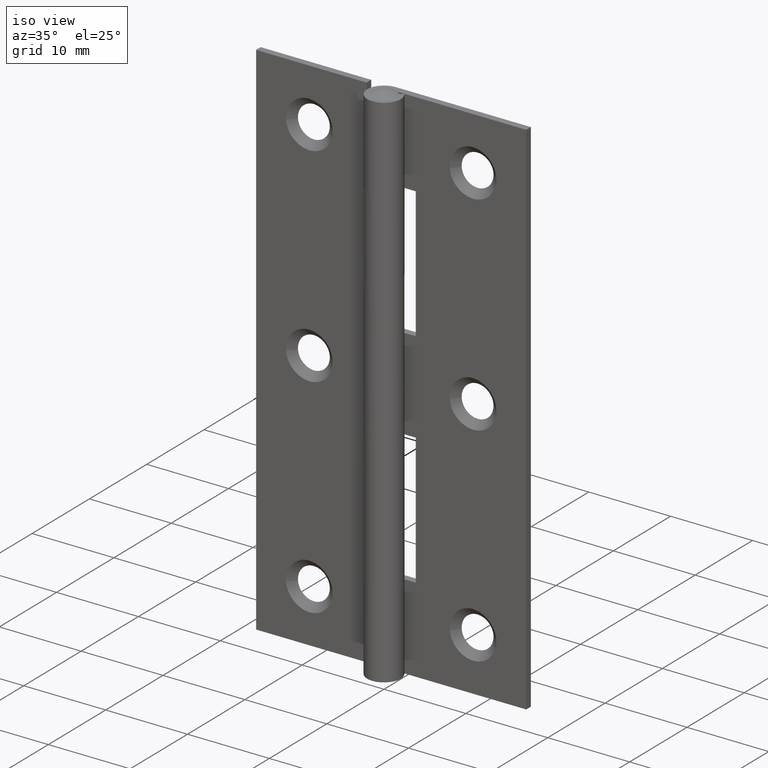
[diagram: clean part render]
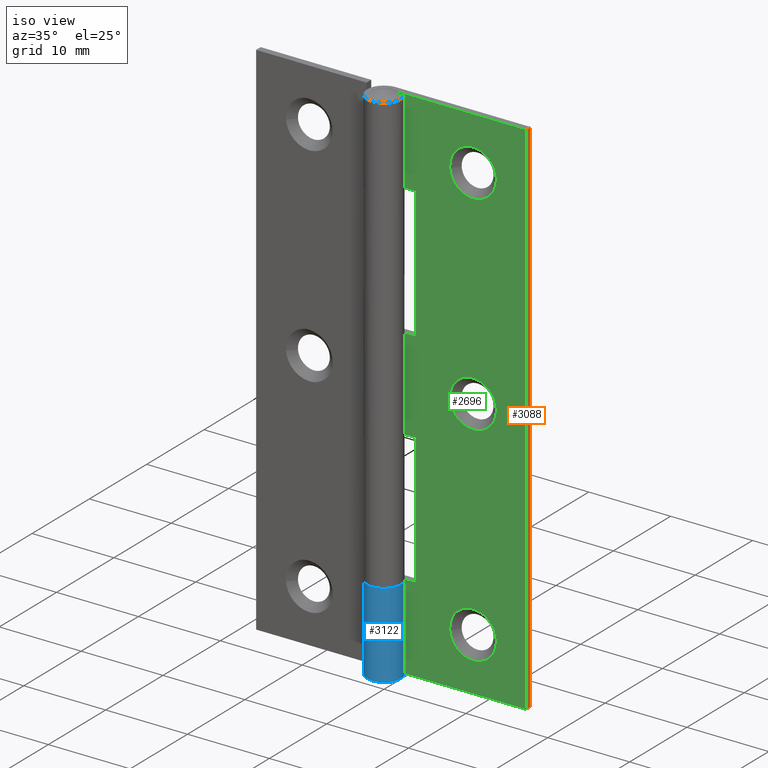
[diagram: same view with three faces highlighted in distinct colors, each labeled with its STEP entity id]
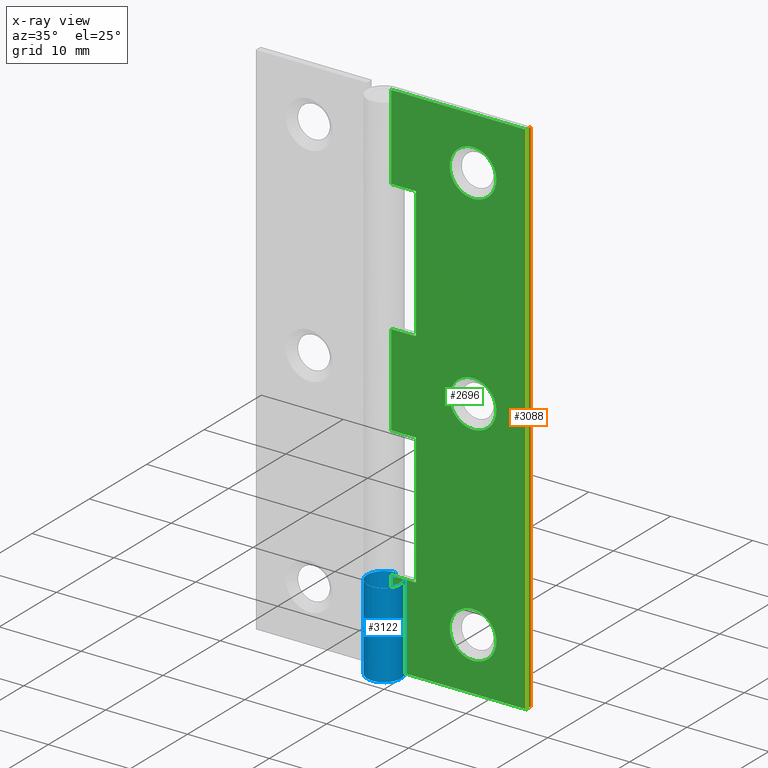
[diagram: x-ray of the same camera — body ghosted, the three highlighted faces saturated]
A machine part, iso view with three faces highlighted in distinct colors.
The next image is the same camera in x-ray (body ghosted, the three faces saturated) — at least one of them is partly hidden behind the body in this view.
Their STEP definitions:

[orange] entity #3088 — the highlighted face is a freeform B-spline surface patch.
#2657=CARTESIAN_POINT('',(16.500000000000000,1.250000000000000,0.0));
#2658=VERTEX_POINT('',#2657);
#2664=CARTESIAN_POINT('',(16.500000000000000,1.250000000000000,64.000007999999895));
#2665=VERTEX_POINT('',#2664);
#2666=CARTESIAN_POINT('',(16.500000000000000,1.250000000000000,64.000007999999895));
#2667=CARTESIAN_POINT('',(16.500000000000000,1.250000000000000,0.0));
#2668=QUASI_UNIFORM_CURVE('',1,(#2666,#2667),.UNSPECIFIED.,.F.,.U.);
#2669=EDGE_CURVE('',#2665,#2658,#2668,.T.);
#2969=CARTESIAN_POINT('',(16.500000000000000,2.049998000000000,0.0));
#2970=VERTEX_POINT('',#2969);
#2976=CARTESIAN_POINT('',(16.500000000000000,2.049998000000000,0.0));
#2977=CARTESIAN_POINT('',(16.500000000000000,1.250000000000000,0.0));
#2978=QUASI_UNIFORM_CURVE('',1,(#2976,#2977),.UNSPECIFIED.,.F.,.U.);
#2979=EDGE_CURVE('',#2970,#2658,#2978,.T.);
#3024=CARTESIAN_POINT('',(16.500000000000000,2.049998000000000,64.000007999999895));
#3025=VERTEX_POINT('',#3024);
#3065=CARTESIAN_POINT('',(16.500000000000000,2.049998000000000,64.000007999999895));
#3066=CARTESIAN_POINT('',(16.500000000000000,1.250000000000000,64.000007999999895));
#3067=QUASI_UNIFORM_CURVE('',1,(#3065,#3066),.UNSPECIFIED.,.F.,.U.);
#3068=EDGE_CURVE('',#3025,#2665,#3067,.T.);
#3073=CARTESIAN_POINT('',(16.500000000000000,1.210040101450551,67.196808275555455));
#3074=CARTESIAN_POINT('',(16.500000000000000,1.210040101450551,-3.196801992169542));
#3075=CARTESIAN_POINT('',(16.500000000000000,2.089957920007068,67.196808275555455));
#3076=CARTESIAN_POINT('',(16.500000000000000,2.089957920007068,-3.196801992169542));
#3077=B_SPLINE_SURFACE_WITH_KNOTS('',1,1,((#3073,#3075),(#3074,#3076)),.UNSPECIFIED.,.F.,.F.,.U.,(2,2),(2,2),(0.0,70.393610267724995),(0.041708334948495,0.958291687403247),.UNSPECIFIED.);
#3078=ORIENTED_EDGE('',*,*,#2979,.F.);
#3079=CARTESIAN_POINT('',(16.500000000000000,2.049998000000000,64.000007999999895));
#3080=CARTESIAN_POINT('',(16.500000000000000,2.049998000000000,0.0));
#3081=QUASI_UNIFORM_CURVE('',1,(#3079,#3080),.UNSPECIFIED.,.F.,.U.);
#3082=EDGE_CURVE('',#3025,#2970,#3081,.T.);
#3083=ORIENTED_EDGE('',*,*,#3082,.F.);
#3084=ORIENTED_EDGE('',*,*,#3068,.T.);
#3085=ORIENTED_EDGE('',*,*,#2669,.T.);
#3086=EDGE_LOOP('',(#3078,#3083,#3084,#3085));
#3087=FACE_OUTER_BOUND('',#3086,.T.);
#3088=ADVANCED_FACE('',(#3087),#3077,.T.);

[blue] entity #3122 — the highlighted face is a freeform B-spline surface patch.
#2255=CARTESIAN_POINT('',(1.662078457834050,1.199998000000014,10.399994000000021));
#2256=VERTEX_POINT('',#2255);
#2262=CARTESIAN_POINT('',(1.662078457834050,1.199998000000014,0.0));
#2263=VERTEX_POINT('',#2262);
#2264=CARTESIAN_POINT('',(1.662078457834050,1.199998000000014,10.399994000000021));
#2265=CARTESIAN_POINT('',(1.662078457834050,1.199998000000014,0.0));
#2266=QUASI_UNIFORM_CURVE('',1,(#2264,#2265),.UNSPECIFIED.,.F.,.U.);
#2267=EDGE_CURVE('',#2256,#2263,#2266,.T.);
#2840=CARTESIAN_POINT('',(0.002863563502375,2.049998000000055,10.399994000000000));
#2841=VERTEX_POINT('',#2840);
#2847=CARTESIAN_POINT('',(1.421085E-014,2.049999000000000,10.399994000000021));
#2848=VERTEX_POINT('',#2847);
#2849=CARTESIAN_POINT('',(1.421085E-014,2.049999000000000,10.399994000000021));
#2850=CARTESIAN_POINT('',(0.002863563502375,2.049998000000055,10.399994000000000));
#2851=QUASI_UNIFORM_CURVE('',1,(#2849,#2850),.UNSPECIFIED.,.F.,.U.);
#2852=EDGE_CURVE('',#2848,#2841,#2851,.T.);
#2854=CARTESIAN_POINT('',(1.662078457834050,1.199998000000014,10.399994000000021));
#2855=CARTESIAN_POINT('',(1.795644960819651,1.015243291094136,10.399994000000021));
#2856=CARTESIAN_POINT('',(1.987276685523909,0.626518493209485,10.399994000000030));
#2857=CARTESIAN_POINT('',(2.073031503087014,0.042367220250507,10.399994000000071));
#2858=CARTESIAN_POINT('',(2.012179586957502,-0.484807465593904,10.399994000000000));
#2859=CARTESIAN_POINT('',(1.857589887315632,-0.902251597281232,10.399994000000040));
#2860=CARTESIAN_POINT('',(1.636211849615566,-1.252820126778095,10.399994000000010));
#2861=CARTESIAN_POINT('',(1.365942650673001,-1.548629379460025,10.399994000000021));
#2862=CARTESIAN_POINT('',(0.992959003012287,-1.816028017463020,10.399994000000170));
#2863=CARTESIAN_POINT('',(0.499955256008916,-2.014193690337075,10.399993999999561));
#2864=CARTESIAN_POINT('',(-0.000939563014724,-2.070073854526020,10.399994000000341));
#2865=CARTESIAN_POINT('',(-0.469301393586405,-2.009380452075693,10.399993999999950));
#2866=CARTESIAN_POINT('',(-0.835599097049281,-1.885229271990783,10.399994000000030));
#2867=CARTESIAN_POINT('',(-1.196554305319546,-1.681226551767658,10.399994000000021));
#2868=CARTESIAN_POINT('',(-1.554739768156385,-1.371876942625054,10.399994000000021));
#2869=CARTESIAN_POINT('',(-1.854590044879949,-0.931431796069647,10.399994000000021));
#2870=CARTESIAN_POINT('',(-2.015752365550074,-0.455363245856609,10.399994000000021));
#2871=CARTESIAN_POINT('',(-2.069603977395458,0.042624964829142,10.399994000000030));
#2872=CARTESIAN_POINT('',(-2.010838573558475,0.485097065695399,10.399994000000021));
#2873=CARTESIAN_POINT('',(-1.854007760089490,0.899655450308329,10.399994000000021));
#2874=CARTESIAN_POINT('',(-1.655814444094017,1.231337696016310,10.399994000000021));
#2875=CARTESIAN_POINT('',(-1.405540757679822,1.507196224643534,10.399994000000021));
#2876=CARTESIAN_POINT('',(-1.111366805843715,1.733986454371553,10.399994000000010));
#2877=CARTESIAN_POINT('',(-0.770441715375844,1.915861384307095,10.399994000000129));
#2878=CARTESIAN_POINT('',(-0.384677732908109,2.027387883575665,10.399993999999710));
#2879=CARTESIAN_POINT('',(-0.113970570574445,2.050003540930461,10.399994000000470));
#2880=CARTESIAN_POINT('',(1.421085E-014,2.049999000000000,10.399994000000021));
#2881=B_SPLINE_CURVE_WITH_KNOTS('',3,(#2854,#2855,#2856,#2857,#2858,#2859,#2860,#2861,#2862,#2863,#2864,#2865,#2866,#2867,#2868,#2869,#2870,#2871,#2872,#2873,#2874,#2875,#2876,#2877,#2878,#2879,#2880),.UNSPECIFIED.,.F.,.U.,(4,1,1,1,1,1,1,1,1,1,1,1,1,1,1,1,1,1,1,1,1,1,1,1,4),(0.000000121533155,0.683891240306123,1.282325176334526,1.752527074981368,2.265471747729968,2.607402553438167,2.992068319763202,3.462267380462563,3.975208391161793,4.573647606866429,4.958354185009285,5.385781129025924,5.727698539653567,6.197897600656391,6.796330896915623,7.309277826779248,7.693984404539545,8.292370225037136,8.634301666668261,9.019011518730824,9.446468831480974,9.745689160581662,10.130400274764950,10.600599284071039,10.942521006790470),.UNSPECIFIED.);
#2882=EDGE_CURVE('',#2256,#2848,#2881,.T.);
#2967=CARTESIAN_POINT('',(0.002863563502375,2.049998000000000,0.0));
#2968=VERTEX_POINT('',#2967);
#2984=CARTESIAN_POINT('',(1.662078457834050,1.199998000000014,0.0));
#2985=CARTESIAN_POINT('',(1.762225828895775,1.061372838876536,0.0));
#2986=CARTESIAN_POINT('',(1.899912885161359,0.809266645156442,0.0));
#2987=CARTESIAN_POINT('',(2.035652593587598,0.357254855515788,0.0));
#2988=CARTESIAN_POINT('',(2.065948511862693,-0.058746276511020,0.0));
#2989=CARTESIAN_POINT('',(2.005398415050684,-0.469065137565074,0.0));
#2990=CARTESIAN_POINT('',(1.899657407565687,-0.795603199340957,0.0));
#2991=CARTESIAN_POINT('',(1.734552278266711,-1.112719165329271,0.0));
#2992=CARTESIAN_POINT('',(1.515906986566459,-1.395989217425167,0.0));
#2993=CARTESIAN_POINT('',(1.187432262049586,-1.693763493301818,0.0));
#2994=CARTESIAN_POINT('',(0.797045513850390,-1.910448581986674,0.0));
#2995=CARTESIAN_POINT('',(0.286128252354253,-2.050201350104912,0.0));
#2996=CARTESIAN_POINT('',(-0.203418619496888,-2.063479078198601,0.0));
#2997=CARTESIAN_POINT('',(-0.747716839784178,-1.933945719108456,0.0));
#2998=CARTESIAN_POINT('',(-1.178809310013562,-1.701651581750282,0.0));
#2999=CARTESIAN_POINT('',(-1.550742563155630,-1.365961854663794,0.0));
#3000=CARTESIAN_POINT('',(-1.841951542931406,-0.956149733249327,0.0));
#3001=CARTESIAN_POINT('',(-2.013200044012206,-0.481980338256303,0.0));
#3002=CARTESIAN_POINT('',(-2.060362316291013,-0.040719622003831,0.0));
#3003=CARTESIAN_POINT('',(-2.033140671307761,0.344430772159814,0.0));
#3004=CARTESIAN_POINT('',(-1.912467409194411,0.801632641555915,0.0));
#3005=CARTESIAN_POINT('',(-1.633449291565715,1.290223023864447,0.0));
#3006=CARTESIAN_POINT('',(-1.243219747514177,1.653230759605598,0.0));
#3007=CARTESIAN_POINT('',(-0.883245807408479,1.859242523429644,0.0));
#3008=CARTESIAN_POINT('',(-0.495949702698091,2.006637477771921,0.0));
#3009=CARTESIAN_POINT('',(-0.196667072748221,2.050372876998159,0.0));
#3010=CARTESIAN_POINT('',(0.002863563502375,2.049998000000000,0.0));
#3011=B_SPLINE_CURVE_WITH_KNOTS('',3,(#2984,#2985,#2986,#2987,#2988,#2989,#2990,#2991,#2992,#2993,#2994,#2995,#2996,#2997,#2998,#2999,#3000,#3001,#3002,#3003,#3004,#3005,#3006,#3007,#3008,#3009,#3010),.UNSPECIFIED.,.F.,.U.,(4,1,1,1,1,1,1,1,1,1,1,1,1,1,1,1,1,1,1,1,1,1,1,1,4),(0.000000121313963,0.513040008207183,0.855096265807276,1.410931340165899,1.752985908444455,2.095037817360881,2.437077278567607,2.821848380485450,3.163869320430829,3.762475713452241,4.147275746431338,4.745865714596788,5.216187883454720,5.814704222293010,6.199520269663860,6.712595567098500,7.311191474827792,7.695998784045088,8.038036716222621,8.465544534046760,9.106887375908809,9.705483283638721,10.047537908068991,10.346820964383269,10.945385858609461),.UNSPECIFIED.);
#3012=EDGE_CURVE('',#2263,#2968,#3011,.T.);
#3089=CARTESIAN_POINT('',(0.056525273907928,2.049220557531481,10.659993850000021));
#3090=CARTESIAN_POINT('',(0.056525273907928,2.049220557531481,-0.266499846250001));
#3091=CARTESIAN_POINT('',(-2.535136649398040,2.120708421321044,10.659993850000022));
#3092=CARTESIAN_POINT('',(-2.535136649398040,2.120708421321044,-0.266499846250001));
#3093=CARTESIAN_POINT('',(-2.007019177453949,-0.417581155384216,10.659993850000021));
#3094=CARTESIAN_POINT('',(-2.007019177453949,-0.417581155384216,-0.266499846250001));
#3095=CARTESIAN_POINT('',(-1.478901705509859,-2.955870732089475,10.659993850000022));
#3096=CARTESIAN_POINT('',(-1.478901705509859,-2.955870732089475,-0.266499846250001));
#3097=CARTESIAN_POINT('',(0.869175676502744,-1.856618874022351,10.659993850000021));
#3098=CARTESIAN_POINT('',(0.869175676502744,-1.856618874022351,-0.266499846250001));
#3099=CARTESIAN_POINT('',(3.217253058515346,-0.757367015955227,10.659993850000022));
#3100=CARTESIAN_POINT('',(3.217253058515346,-0.757367015955227,-0.266499846250001));
#3101=CARTESIAN_POINT('',(1.606127766524324,1.273912711923243,10.659993850000021));
#3102=CARTESIAN_POINT('',(1.606127766524324,1.273912711923243,-0.266499846250001));
#3110=(BOUNDED_SURFACE()B_SPLINE_SURFACE(1,2,((#3089,#3091,#3093,#3095,#3097,#3099,#3101),(#3090,#3092,#3094,#3096,#3098,#3100,#3102)),.UNSPECIFIED.,.F.,.F.,.U.)B_SPLINE_SURFACE_WITH_KNOTS((2,2),(3,2,2,3),(0.0,10.926493696250031),(0.0,3.969921957027141,7.939843914054282,11.909765871081420),.UNSPECIFIED.)GEOMETRIC_REPRESENTATION_ITEM()RATIONAL_B_SPLINE_SURFACE(((1.0,0.620235491268260,1.0,0.620235491268260,1.0,0.620235491268260,1.0),(1.0,0.620235491268260,1.0,0.620235491268260,1.0,0.620235491268260,1.0)))REPRESENTATION_ITEM('')SURFACE());
#3111=ORIENTED_EDGE('',*,*,#2882,.T.);
#3112=ORIENTED_EDGE('',*,*,#2852,.T.);
#3113=CARTESIAN_POINT('',(0.002863563502375,2.049998000000055,10.399994000000000));
#3114=CARTESIAN_POINT('',(0.002863563502375,2.049998000000000,0.0));
#3115=QUASI_UNIFORM_CURVE('',1,(#3113,#3114),.UNSPECIFIED.,.F.,.U.);
#3116=EDGE_CURVE('',#2841,#2968,#3115,.T.);
#3117=ORIENTED_EDGE('',*,*,#3116,.T.);
#3118=ORIENTED_EDGE('',*,*,#3012,.F.);
#3119=ORIENTED_EDGE('',*,*,#2267,.F.);
#3120=EDGE_LOOP('',(#3111,#3112,#3117,#3118,#3119));
#3121=FACE_OUTER_BOUND('',#3120,.T.);
#3122=ADVANCED_FACE('',(#3121),#3110,.T.);

[green] entity #2696 — the highlighted face is a freeform B-spline surface patch.
#1713=CARTESIAN_POINT('',(10.0,1.250000000000000,60.350008000000003));
#1714=VERTEX_POINT('',#1713);
#1715=CARTESIAN_POINT('',(12.841214401168150,1.249999999938170,57.723616423345753));
#1716=VERTEX_POINT('',#1715);
#1717=CARTESIAN_POINT('',(10.0,1.250000000000000,60.350008000000003));
#1718=CARTESIAN_POINT('',(12.634512900780678,1.249999999969085,60.350008000002710));
#1719=CARTESIAN_POINT('',(12.841214401168148,1.249999999938170,57.723616423345753));
#1727=(BOUNDED_CURVE()B_SPLINE_CURVE(2,(#1717,#1718,#1719),.UNSPECIFIED.,.F.,.U.)B_SPLINE_CURVE_WITH_KNOTS((3,3),(0.0,0.236331300601638),.UNSPECIFIED.)CURVE()GEOMETRIC_REPRESENTATION_ITEM()RATIONAL_B_SPLINE_CURVE((1.0,0.723120658641666,0.969723356106852))REPRESENTATION_ITEM(''));
#1728=EDGE_CURVE('',#1714,#1716,#1727,.T.);
#1730=CARTESIAN_POINT('',(7.158785598831855,1.249999999938170,57.276399576654249));
#1731=VERTEX_POINT('',#1730);
#1732=CARTESIAN_POINT('',(7.158785598831855,1.249999999938170,57.276399576654256));
#1733=CARTESIAN_POINT('',(7.149999999931924,1.249999999939293,57.388031194763627));
#1734=CARTESIAN_POINT('',(7.149999999933287,1.249999999940508,57.500007999994750));
#1735=CARTESIAN_POINT('',(7.149999999967956,1.249999999971423,60.350007999997473));
#1736=CARTESIAN_POINT('',(10.0,1.250000000000000,60.350008000000003));
#1744=(BOUNDED_CURVE()B_SPLINE_CURVE(2,(#1732,#1733,#1734,#1735,#1736),.UNSPECIFIED.,.F.,.U.)B_SPLINE_CURVE_WITH_KNOTS((3,2,3),(0.736331300601638,0.750000000000000,1.0),.UNSPECIFIED.)CURVE()GEOMETRIC_REPRESENTATION_ITEM()RATIONAL_B_SPLINE_CURVE((0.969723356106852,0.983986122544881,1.0,0.707106781186547,1.0))REPRESENTATION_ITEM(''));
#1745=EDGE_CURVE('',#1731,#1714,#1744,.T.);
#1812=CARTESIAN_POINT('',(10.0,1.250000000000000,54.650008000000000));
#1813=VERTEX_POINT('',#1812);
#1814=CARTESIAN_POINT('',(12.841214401168148,1.249999999938170,57.723616423345753));
#1815=CARTESIAN_POINT('',(12.850000000068077,1.249999999939293,57.611984805236375));
#1816=CARTESIAN_POINT('',(12.850000000066711,1.249999999940507,57.500008000005252));
#1817=CARTESIAN_POINT('',(12.850000000032043,1.249999999971422,54.650008000002522));
#1818=CARTESIAN_POINT('',(10.0,1.250000000000000,54.650008000000000));
#1826=(BOUNDED_CURVE()B_SPLINE_CURVE(2,(#1814,#1815,#1816,#1817,#1818),.UNSPECIFIED.,.F.,.U.)B_SPLINE_CURVE_WITH_KNOTS((3,2,3),(0.236331300601638,0.250000000000000,0.500000000000000),.UNSPECIFIED.)CURVE()GEOMETRIC_REPRESENTATION_ITEM()RATIONAL_B_SPLINE_CURVE((0.969723356106852,0.983986122544881,1.0,0.707106781186547,1.0))REPRESENTATION_ITEM(''));
#1827=EDGE_CURVE('',#1716,#1813,#1826,.T.);
#1861=CARTESIAN_POINT('',(10.0,1.250000000000000,54.650008000000000));
#1862=CARTESIAN_POINT('',(7.365487099219325,1.249999999969085,54.650007999997264));
#1863=CARTESIAN_POINT('',(7.158785598831856,1.249999999938170,57.276399576654249));
#1871=(BOUNDED_CURVE()B_SPLINE_CURVE(2,(#1861,#1862,#1863),.UNSPECIFIED.,.F.,.U.)B_SPLINE_CURVE_WITH_KNOTS((3,3),(0.500000000000000,0.736331300601638),.UNSPECIFIED.)CURVE()GEOMETRIC_REPRESENTATION_ITEM()RATIONAL_B_SPLINE_CURVE((1.0,0.723120658641667,0.969723356106852))REPRESENTATION_ITEM(''));
#1872=EDGE_CURVE('',#1813,#1731,#1871,.T.);
#1895=CARTESIAN_POINT('',(10.0,1.250000000000000,34.849991999999993));
#1896=VERTEX_POINT('',#1895);
#1897=CARTESIAN_POINT('',(12.841214401168150,1.249999999938170,32.223600423345751));
#1898=VERTEX_POINT('',#1897);
#1899=CARTESIAN_POINT('',(10.0,1.250000000000000,34.849991999999993));
#1900=CARTESIAN_POINT('',(12.634512900780678,1.249999999969085,34.849992000002722));
#1901=CARTESIAN_POINT('',(12.841214401168148,1.249999999938170,32.223600423345751));
#1909=(BOUNDED_CURVE()B_SPLINE_CURVE(2,(#1899,#1900,#1901),.UNSPECIFIED.,.F.,.U.)B_SPLINE_CURVE_WITH_KNOTS((3,3),(0.0,0.236331300601638),.UNSPECIFIED.)CURVE()GEOMETRIC_REPRESENTATION_ITEM()RATIONAL_B_SPLINE_CURVE((1.0,0.723120658641667,0.969723356106851))REPRESENTATION_ITEM(''));
#1910=EDGE_CURVE('',#1896,#1898,#1909,.T.);
#1912=CARTESIAN_POINT('',(7.158785598831855,1.249999999938170,31.776383576654251));
#1913=VERTEX_POINT('',#1912);
#1914=CARTESIAN_POINT('',(7.158785598831855,1.249999999938170,31.776383576654254));
#1915=CARTESIAN_POINT('',(7.149999999931923,1.249999999939293,31.888015194763618));
#1916=CARTESIAN_POINT('',(7.149999999933285,1.249999999940507,31.999991999994741));
#1917=CARTESIAN_POINT('',(7.149999999967956,1.249999999971422,34.849991999997471));
#1918=CARTESIAN_POINT('',(10.0,1.250000000000000,34.849991999999993));
#1926=(BOUNDED_CURVE()B_SPLINE_CURVE(2,(#1914,#1915,#1916,#1917,#1918),.UNSPECIFIED.,.F.,.U.)B_SPLINE_CURVE_WITH_KNOTS((3,2,3),(0.736331300601638,0.750000000000000,1.0),.UNSPECIFIED.)CURVE()GEOMETRIC_REPRESENTATION_ITEM()RATIONAL_B_SPLINE_CURVE((0.969723356106852,0.983986122544881,1.0,0.707106781186547,1.0))REPRESENTATION_ITEM(''));
#1927=EDGE_CURVE('',#1913,#1896,#1926,.T.);
#1994=CARTESIAN_POINT('',(10.0,1.250000000000000,29.149992000000001));
#1995=VERTEX_POINT('',#1994);
#1996=CARTESIAN_POINT('',(12.841214401168148,1.249999999938170,32.223600423345751));
#1997=CARTESIAN_POINT('',(12.850000000068082,1.249999999939293,32.111968805236380));
#1998=CARTESIAN_POINT('',(12.850000000066720,1.249999999940507,31.999992000005250));
#1999=CARTESIAN_POINT('',(12.850000000032045,1.249999999971422,29.149992000002531));
#2000=CARTESIAN_POINT('',(10.0,1.250000000000000,29.149992000000001));
#2008=(BOUNDED_CURVE()B_SPLINE_CURVE(2,(#1996,#1997,#1998,#1999,#2000),.UNSPECIFIED.,.F.,.U.)B_SPLINE_CURVE_WITH_KNOTS((3,2,3),(0.236331300601638,0.250000000000000,0.500000000000000),.UNSPECIFIED.)CURVE()GEOMETRIC_REPRESENTATION_ITEM()RATIONAL_B_SPLINE_CURVE((0.969723356106851,0.983986122544881,1.0,0.707106781186547,1.0))REPRESENTATION_ITEM(''));
#2009=EDGE_CURVE('',#1898,#1995,#2008,.T.);
#2043=CARTESIAN_POINT('',(10.0,1.250000000000000,29.149992000000001));
#2044=CARTESIAN_POINT('',(7.365487099219327,1.249999999969085,29.149991999997280));
#2045=CARTESIAN_POINT('',(7.158785598831855,1.249999999938170,31.776383576654247));
#2053=(BOUNDED_CURVE()B_SPLINE_CURVE(2,(#2043,#2044,#2045),.UNSPECIFIED.,.F.,.U.)B_SPLINE_CURVE_WITH_KNOTS((3,3),(0.500000000000000,0.736331300601638),.UNSPECIFIED.)CURVE()GEOMETRIC_REPRESENTATION_ITEM()RATIONAL_B_SPLINE_CURVE((1.0,0.723120658641667,0.969723356106851))REPRESENTATION_ITEM(''));
#2054=EDGE_CURVE('',#1995,#1913,#2053,.T.);
#2077=CARTESIAN_POINT('',(10.0,1.250000000000000,9.350000000000001));
#2078=VERTEX_POINT('',#2077);
#2079=CARTESIAN_POINT('',(12.841214401168150,1.249999999938171,6.723608423345754));
#2080=VERTEX_POINT('',#2079);
#2081=CARTESIAN_POINT('',(10.0,1.250000000000000,9.350000000000001));
#2082=CARTESIAN_POINT('',(12.634512900780670,1.249999999969085,9.350000000002728));
#2083=CARTESIAN_POINT('',(12.841214401168141,1.249999999938171,6.723608423345754));
#2091=(BOUNDED_CURVE()B_SPLINE_CURVE(2,(#2081,#2082,#2083),.UNSPECIFIED.,.F.,.U.)B_SPLINE_CURVE_WITH_KNOTS((3,3),(0.0,0.236331300601638),.UNSPECIFIED.)CURVE()GEOMETRIC_REPRESENTATION_ITEM()RATIONAL_B_SPLINE_CURVE((1.0,0.723120658641667,0.969723356106851))REPRESENTATION_ITEM(''));
#2092=EDGE_CURVE('',#2078,#2080,#2091,.T.);
#2094=CARTESIAN_POINT('',(7.158785598831855,1.249999999938170,6.276391576654248));
#2095=VERTEX_POINT('',#2094);
#2096=CARTESIAN_POINT('',(7.158785598831856,1.249999999938170,6.276391576654248));
#2097=CARTESIAN_POINT('',(7.149999999931925,1.249999999939293,6.388023194763619));
#2098=CARTESIAN_POINT('',(7.149999999933287,1.249999999940507,6.499999999994751));
#2099=CARTESIAN_POINT('',(7.149999999967956,1.249999999971422,9.349999999997479));
#2100=CARTESIAN_POINT('',(10.0,1.250000000000000,9.350000000000001));
#2108=(BOUNDED_CURVE()B_SPLINE_CURVE(2,(#2096,#2097,#2098,#2099,#2100),.UNSPECIFIED.,.F.,.U.)B_SPLINE_CURVE_WITH_KNOTS((3,2,3),(0.736331300601638,0.750000000000000,1.0),.UNSPECIFIED.)CURVE()GEOMETRIC_REPRESENTATION_ITEM()RATIONAL_B_SPLINE_CURVE((0.969723356106852,0.983986122544881,1.0,0.707106781186547,1.0))REPRESENTATION_ITEM(''));
#2109=EDGE_CURVE('',#2095,#2078,#2108,.T.);
#2176=CARTESIAN_POINT('',(10.0,1.250000000000000,3.650000000000000));
#2177=VERTEX_POINT('',#2176);
#2178=CARTESIAN_POINT('',(12.841214401168141,1.249999999938171,6.723608423345754));
#2179=CARTESIAN_POINT('',(12.850000000068073,1.249999999939293,6.611976805236382));
#2180=CARTESIAN_POINT('',(12.850000000066711,1.249999999940508,6.500000000005250));
#2181=CARTESIAN_POINT('',(12.850000000032043,1.249999999971423,3.650000000002521));
#2182=CARTESIAN_POINT('',(10.0,1.250000000000000,3.650000000000000));
#2190=(BOUNDED_CURVE()B_SPLINE_CURVE(2,(#2178,#2179,#2180,#2181,#2182),.UNSPECIFIED.,.F.,.U.)B_SPLINE_CURVE_WITH_KNOTS((3,2,3),(0.236331300601638,0.250000000000000,0.500000000000000),.UNSPECIFIED.)CURVE()GEOMETRIC_REPRESENTATION_ITEM()RATIONAL_B_SPLINE_CURVE((0.969723356106851,0.983986122544881,1.0,0.707106781186547,1.0))REPRESENTATION_ITEM(''));
#2191=EDGE_CURVE('',#2080,#2177,#2190,.T.);
#2225=CARTESIAN_POINT('',(10.0,1.250000000000000,3.650000000000000));
#2226=CARTESIAN_POINT('',(7.365487099219325,1.249999999969085,3.649999999997271));
#2227=CARTESIAN_POINT('',(7.158785598831855,1.249999999938170,6.276391576654248));
#2235=(BOUNDED_CURVE()B_SPLINE_CURVE(2,(#2225,#2226,#2227),.UNSPECIFIED.,.F.,.U.)B_SPLINE_CURVE_WITH_KNOTS((3,3),(0.500000000000000,0.736331300601638),.UNSPECIFIED.)CURVE()GEOMETRIC_REPRESENTATION_ITEM()RATIONAL_B_SPLINE_CURVE((1.0,0.723120658641667,0.969723356106851))REPRESENTATION_ITEM(''));
#2236=EDGE_CURVE('',#2177,#2095,#2235,.T.);
#2299=CARTESIAN_POINT('',(-0.002236067073799,1.249998000000016,10.399994000000021));
#2300=VERTEX_POINT('',#2299);
#2330=CARTESIAN_POINT('',(-0.002236067073799,1.249998000000016,0.0));
#2331=VERTEX_POINT('',#2330);
#2358=CARTESIAN_POINT('',(-0.002236067073799,1.249998000000016,10.399994000000021));
#2359=CARTESIAN_POINT('',(-0.002236067073799,1.249998000000016,0.0));
#2360=QUASI_UNIFORM_CURVE('',1,(#2358,#2359),.UNSPECIFIED.,.F.,.U.);
#2361=EDGE_CURVE('',#2300,#2331,#2360,.T.);
#2460=CARTESIAN_POINT('',(-0.002236067073799,1.249998000000016,37.599998000000049));
#2461=VERTEX_POINT('',#2460);
#2488=CARTESIAN_POINT('',(-0.002236067073799,1.249998000000016,26.399994000000049));
#2489=VERTEX_POINT('',#2488);
#2516=CARTESIAN_POINT('',(-0.002236067073799,1.249998000000016,37.599998000000049));
#2517=CARTESIAN_POINT('',(-0.002236067073799,1.249998000000016,26.399994000000049));
#2518=QUASI_UNIFORM_CURVE('',1,(#2516,#2517),.UNSPECIFIED.,.F.,.U.);
#2519=EDGE_CURVE('',#2461,#2489,#2518,.T.);
#2546=CARTESIAN_POINT('',(-0.002236067073799,1.249998000000016,53.599997999999900));
#2547=VERTEX_POINT('',#2546);
#2573=CARTESIAN_POINT('',(-0.002236067073799,1.249998000000016,64.000007999999895));
#2574=VERTEX_POINT('',#2573);
#2575=CARTESIAN_POINT('',(-0.002236067073799,1.249998000000016,64.000007999999895));
#2576=CARTESIAN_POINT('',(-0.002236067073799,1.249998000000016,53.599997999999900));
#2577=QUASI_UNIFORM_CURVE('',1,(#2575,#2576),.UNSPECIFIED.,.F.,.U.);
#2578=EDGE_CURVE('',#2574,#2547,#2577,.T.);
#2611=CARTESIAN_POINT('',(-0.826522726639601,1.249998000000016,67.196808275555455));
#2612=CARTESIAN_POINT('',(-0.826522726639601,1.249998000000016,-3.196801992169542));
#2613=CARTESIAN_POINT('',(17.324287102190269,1.249998000000016,67.196808275555455));
#2614=CARTESIAN_POINT('',(17.324287102190269,1.249998000000016,-3.196801992169542));
#2615=B_SPLINE_SURFACE_WITH_KNOTS('',1,1,((#2611,#2613),(#2612,#2614)),.UNSPECIFIED.,.F.,.F.,.U.,(2,2),(2,2),(0.0,70.393610267724995),(0.0,18.150809828829871),.UNSPECIFIED.);
#2616=ORIENTED_EDGE('',*,*,#2578,.T.);
#2617=CARTESIAN_POINT('',(3.0,1.249998000000030,53.599997999999999));
#2618=VERTEX_POINT('',#2617);
#2619=CARTESIAN_POINT('',(-0.002236067073799,1.249998000000016,53.599997999999900));
#2620=CARTESIAN_POINT('',(3.0,1.249998000000030,53.599997999999999));
#2621=QUASI_UNIFORM_CURVE('',1,(#2619,#2620),.UNSPECIFIED.,.F.,.U.);
#2622=EDGE_CURVE('',#2547,#2618,#2621,.T.);
#2623=ORIENTED_EDGE('',*,*,#2622,.T.);
#2624=CARTESIAN_POINT('',(3.0,1.249998000000030,37.599997999999999));
#2625=VERTEX_POINT('',#2624);
#2626=CARTESIAN_POINT('',(3.0,1.249998000000030,53.599997999999999));
#2627=CARTESIAN_POINT('',(3.0,1.249998000000030,37.599997999999999));
#2628=QUASI_UNIFORM_CURVE('',1,(#2626,#2627),.UNSPECIFIED.,.F.,.U.);
#2629=EDGE_CURVE('',#2618,#2625,#2628,.T.);
#2630=ORIENTED_EDGE('',*,*,#2629,.T.);
#2631=CARTESIAN_POINT('',(3.0,1.249998000000030,37.599997999999999));
#2632=CARTESIAN_POINT('',(-0.002236067073799,1.249998000000016,37.599998000000049));
#2633=QUASI_UNIFORM_CURVE('',1,(#2631,#2632),.UNSPECIFIED.,.F.,.U.);
#2634=EDGE_CURVE('',#2625,#2461,#2633,.T.);
#2635=ORIENTED_EDGE('',*,*,#2634,.T.);
#2636=ORIENTED_EDGE('',*,*,#2519,.T.);
#2637=CARTESIAN_POINT('',(3.0,1.249998000000030,26.399994000000000));
#2638=VERTEX_POINT('',#2637);
#2639=CARTESIAN_POINT('',(-0.002236067073799,1.249998000000016,26.399994000000049));
#2640=CARTESIAN_POINT('',(3.0,1.249998000000030,26.399994000000000));
#2641=QUASI_UNIFORM_CURVE('',1,(#2639,#2640),.UNSPECIFIED.,.F.,.U.);
#2642=EDGE_CURVE('',#2489,#2638,#2641,.T.);
#2643=ORIENTED_EDGE('',*,*,#2642,.T.);
#2644=CARTESIAN_POINT('',(3.0,1.249998000000030,10.399994000000000));
#2645=VERTEX_POINT('',#2644);
#2646=CARTESIAN_POINT('',(3.0,1.249998000000030,26.399994000000000));
#2647=CARTESIAN_POINT('',(3.0,1.249998000000030,10.399994000000000));
#2648=QUASI_UNIFORM_CURVE('',1,(#2646,#2647),.UNSPECIFIED.,.F.,.U.);
#2649=EDGE_CURVE('',#2638,#2645,#2648,.T.);
#2650=ORIENTED_EDGE('',*,*,#2649,.T.);
#2651=CARTESIAN_POINT('',(3.0,1.249998000000030,10.399994000000000));
#2652=CARTESIAN_POINT('',(-0.002236067073799,1.249998000000016,10.399994000000021));
#2653=QUASI_UNIFORM_CURVE('',1,(#2651,#2652),.UNSPECIFIED.,.F.,.U.);
#2654=EDGE_CURVE('',#2645,#2300,#2653,.T.);
#2655=ORIENTED_EDGE('',*,*,#2654,.T.);
#2656=ORIENTED_EDGE('',*,*,#2361,.T.);
#2657=CARTESIAN_POINT('',(16.500000000000000,1.250000000000000,0.0));
#2658=VERTEX_POINT('',#2657);
#2659=CARTESIAN_POINT('',(16.500000000000000,1.250000000000000,0.0));
#2660=CARTESIAN_POINT('',(-0.002236067073799,1.249998000000016,0.0));
#2661=QUASI_UNIFORM_CURVE('',1,(#2659,#2660),.UNSPECIFIED.,.F.,.U.);
#2662=EDGE_CURVE('',#2658,#2331,#2661,.T.);
#2663=ORIENTED_EDGE('',*,*,#2662,.F.);
#2664=CARTESIAN_POINT('',(16.500000000000000,1.250000000000000,64.000007999999895));
#2665=VERTEX_POINT('',#2664);
#2666=CARTESIAN_POINT('',(16.500000000000000,1.250000000000000,64.000007999999895));
#2667=CARTESIAN_POINT('',(16.500000000000000,1.250000000000000,0.0));
#2668=QUASI_UNIFORM_CURVE('',1,(#2666,#2667),.UNSPECIFIED.,.F.,.U.);
#2669=EDGE_CURVE('',#2665,#2658,#2668,.T.);
#2670=ORIENTED_EDGE('',*,*,#2669,.F.);
#2671=CARTESIAN_POINT('',(16.500000000000000,1.250000000000000,64.000007999999895));
#2672=CARTESIAN_POINT('',(-0.002236067073799,1.249998000000016,64.000007999999895));
#2673=QUASI_UNIFORM_CURVE('',1,(#2671,#2672),.UNSPECIFIED.,.F.,.U.);
#2674=EDGE_CURVE('',#2665,#2574,#2673,.T.);
#2675=ORIENTED_EDGE('',*,*,#2674,.T.);
#2676=EDGE_LOOP('',(#2616,#2623,#2630,#2635,#2636,#2643,#2650,#2655,#2656,#2663,#2670,#2675));
#2677=FACE_OUTER_BOUND('',#2676,.T.);
#2678=ORIENTED_EDGE('',*,*,#2236,.T.);
#2679=ORIENTED_EDGE('',*,*,#2109,.T.);
#2680=ORIENTED_EDGE('',*,*,#2092,.T.);
#2681=ORIENTED_EDGE('',*,*,#2191,.T.);
#2682=EDGE_LOOP('',(#2678,#2679,#2680,#2681));
#2683=FACE_BOUND('',#2682,.T.);
#2684=ORIENTED_EDGE('',*,*,#2054,.T.);
#2685=ORIENTED_EDGE('',*,*,#1927,.T.);
#2686=ORIENTED_EDGE('',*,*,#1910,.T.);
#2687=ORIENTED_EDGE('',*,*,#2009,.T.);
#2688=EDGE_LOOP('',(#2684,#2685,#2686,#2687));
#2689=FACE_BOUND('',#2688,.T.);
#2690=ORIENTED_EDGE('',*,*,#1872,.T.);
#2691=ORIENTED_EDGE('',*,*,#1745,.T.);
#2692=ORIENTED_EDGE('',*,*,#1728,.T.);
#2693=ORIENTED_EDGE('',*,*,#1827,.T.);
#2694=EDGE_LOOP('',(#2690,#2691,#2692,#2693));
#2695=FACE_BOUND('',#2694,.T.);
#2696=ADVANCED_FACE('',(#2677,#2683,#2689,#2695),#2615,.T.);